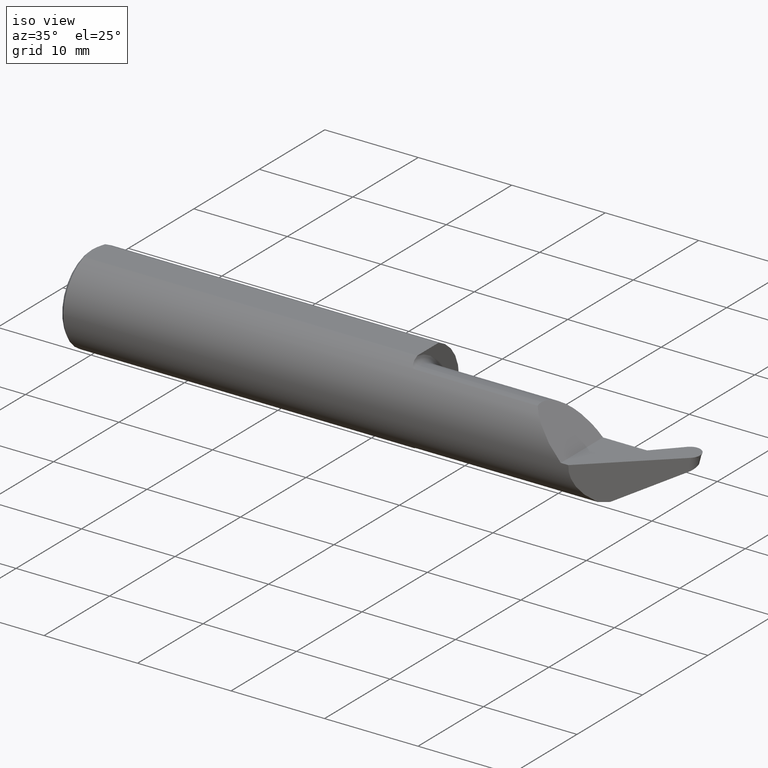
[diagram: clean part render]
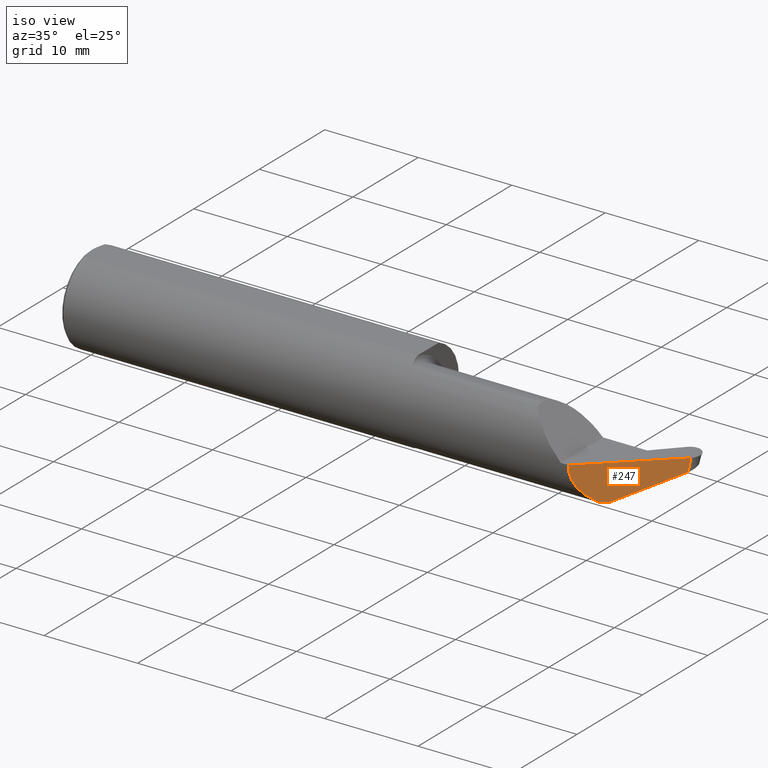
[diagram: same view with one face highlighted and labeled with its STEP entity id]
A machine part, iso view. The second image highlights one B-rep face of the part: STEP entity #247.
In plain terms, the highlighted planar face has unit normal (-0.6816, 0.7309, 0.0349).
Its self-contained STEP definition (entity closure, byte-faithful):
#16 = CARTESIAN_POINT ( 'NONE',  ( 2.451196188586195923, 0.1021196191854747415, -0.01806203069895944563 ) ) ;
#41 = DIRECTION ( 'NONE',  ( -0.7313537016191670181, -0.6819983600625021403, 0.000000000000000000 ) ) ;
#57 = ORIENTED_EDGE ( 'NONE', *, *, #413, .F. ) ;
#64 = VECTOR ( 'NONE', #762, 39.37007874015748854 ) ;
#70 = EDGE_CURVE ( 'NONE', #490, #519, #119, .T. ) ;
#73 = ORIENTED_EDGE ( 'NONE', *, *, #70, .T. ) ;
#96 =( BOUNDED_CURVE ( )  B_SPLINE_CURVE ( 3, ( #822, #214, #144, #522 ),
 .UNSPECIFIED., .F., .F. ) 
 B_SPLINE_CURVE_WITH_KNOTS ( ( 4, 4 ),
 ( 1.523084436873743508, 1.538444393020995671 ),
 .UNSPECIFIED. ) 
 CURVE ( )  GEOMETRIC_REPRESENTATION_ITEM ( )  RATIONAL_B_SPLINE_CURVE ( ( 1.000000000000000000, 0.9999803394088983000, 0.9999803394088983000, 1.000000000000000000 ) ) 
 REPRESENTATION_ITEM ( '' )  );
#119 = B_SPLINE_CURVE_WITH_KNOTS ( 'NONE', 3,
 ( #331, #579, #16, #523 ),
 .UNSPECIFIED., .F., .F.,
 ( 4, 4 ),
 ( 0.000000000000000000, 1.000000000000000000 ),
 .UNSPECIFIED. ) ;
#121 = CARTESIAN_POINT ( 'NONE',  ( 2.223516544669093875, -0.1038401262696877492, -0.1511553621332438202 ) ) ;
#127 = EDGE_CURVE ( 'NONE', #519, #439, #397, .T. ) ;
#144 = CARTESIAN_POINT ( 'NONE',  ( 2.244970942544508130, -0.08379353209400738911, -0.1519940231509273043 ) ) ;
#172 = FACE_OUTER_BOUND ( 'NONE', #302, .T. ) ;
#214 = CARTESIAN_POINT ( 'NONE',  ( 2.244136095074108272, -0.08457175457142981911, -0.1519999999999997464 ) ) ;
#238 = CARTESIAN_POINT ( 'NONE',  ( 2.245806022198207241, -0.08301537846867715342, -0.1519820698053077346 ) ) ;
#243 =( BOUNDED_CURVE ( )  B_SPLINE_CURVE ( 3, ( #432, #121, #442, #694 ),
 .UNSPECIFIED., .F., .T. ) 
 B_SPLINE_CURVE_WITH_KNOTS ( ( 4, 4 ),
 ( 1.340489448569094577, 1.523084436873743508 ),
 .UNSPECIFIED. ) 
 CURVE ( )  GEOMETRIC_REPRESENTATION_ITEM ( )  RATIONAL_B_SPLINE_CURVE ( ( 1.000000000000000000, 0.9972235185427065218, 0.9972235185427065218, 1.000000000000000000 ) ) 
 REPRESENTATION_ITEM ( '' )  );
#244 = LINE ( 'NONE', #501, #64 ) ;
#246 = VERTEX_POINT ( 'NONE', #238 ) ;
#247 = ADVANCED_FACE ( 'NONE', ( #172 ), #595, .F. ) ;
#255 = AXIS2_PLACEMENT_3D ( 'NONE', #422, #736, #472 ) ;
#266 = CARTESIAN_POINT ( 'NONE',  ( 2.213833035312449127, -0.1129504686584655859, -0.1494731217638575194 ) ) ;
#271 = CARTESIAN_POINT ( 'NONE',  ( 2.213833035312449127, -0.1129504686584655859, -0.1494731217638575194 ) ) ;
#302 = EDGE_LOOP ( 'NONE', ( #57, #73, #588, #723, #361, #658 ) ) ;
#325 =( BOUNDED_CURVE ( )  B_SPLINE_CURVE ( 3, ( #271, #529, #725, #775 ),
 .UNSPECIFIED., .F., .T. ) 
 B_SPLINE_CURVE_WITH_KNOTS ( ( 4, 4 ),
 ( 5.407212885630066523, 6.330897197100739504 ),
 .UNSPECIFIED. ) 
 CURVE ( )  GEOMETRIC_REPRESENTATION_ITEM ( )  RATIONAL_B_SPLINE_CURVE ( ( 1.000000000000000000, 0.9301554373620524174, 0.9301554373620524174, 1.000000000000000000 ) ) 
 REPRESENTATION_ITEM ( '' )  );
#331 = CARTESIAN_POINT ( 'NONE',  ( 2.446225771526027604, 0.09920948656705549928, -0.05418609209688698969 ) ) ;
#351 = VECTOR ( 'NONE', #41, 39.37007874015748143 ) ;
#361 = ORIENTED_EDGE ( 'NONE', *, *, #626, .T. ) ;
#377 = CARTESIAN_POINT ( 'NONE',  ( 2.141702867418015188, -0.1873500000000000443, -1.894185036436226334E-18 ) ) ;
#396 = CARTESIAN_POINT ( 'NONE',  ( 2.243301529027790231, -0.08534999999999996756, -0.1519999999999997464 ) ) ;
#397 = LINE ( 'NONE', #482, #351 ) ;
#413 = EDGE_CURVE ( 'NONE', #490, #246, #244, .T. ) ;
#422 = CARTESIAN_POINT ( 'NONE',  ( 2.546610177810151310, 0.2020557698480204001, -0.2476242554592702760 ) ) ;
#432 = CARTESIAN_POINT ( 'NONE',  ( 2.213833035312449127, -0.1129504686584655859, -0.1494731217638575194 ) ) ;
#439 = VERTEX_POINT ( 'NONE', #377 ) ;
#442 = CARTESIAN_POINT ( 'NONE',  ( 2.233366724749886068, -0.09461435486697032660, -0.1519999999999997187 ) ) ;
#454 = VERTEX_POINT ( 'NONE', #266 ) ;
#472 = DIRECTION ( 'NONE',  ( -0.7313537016191666851, -0.6819983600625023623, 0.000000000000000000 ) ) ;
#482 = CARTESIAN_POINT ( 'NONE',  ( 2.169027510930384040, -0.1618693577013822493, 0.000000000000000000 ) ) ;
#490 = VERTEX_POINT ( 'NONE', #538 ) ;
#501 = CARTESIAN_POINT ( 'NONE',  ( 2.208254368741700890, -0.1171579467830791699, -0.1703056166446962061 ) ) ;
#519 = VERTEX_POINT ( 'NONE', #674 ) ;
#522 = CARTESIAN_POINT ( 'NONE',  ( 2.245806022198207241, -0.08301537846867715342, -0.1519820698053077346 ) ) ;
#523 = CARTESIAN_POINT ( 'NONE',  ( 2.453681397116281637, 0.1035746854946826417, 0.000000000000000000 ) ) ;
#529 = CARTESIAN_POINT ( 'NONE',  ( 2.164487922858646662, -0.1606879575236967450, -0.1133999356533503394 ) ) ;
#538 = CARTESIAN_POINT ( 'NONE',  ( 2.446225771526027604, 0.09920948656705549928, -0.05418609209688698969 ) ) ;
#579 = CARTESIAN_POINT ( 'NONE',  ( 2.448710980056110209, 0.1006645528762664943, -0.03612406139791903004 ) ) ;
#588 = ORIENTED_EDGE ( 'NONE', *, *, #127, .T. ) ;
#595 = PLANE ( 'NONE',  #255 ) ;
#626 = EDGE_CURVE ( 'NONE', #454, #690, #243, .T. ) ;
#631 = EDGE_CURVE ( 'NONE', #690, #246, #96, .T. ) ;
#656 = EDGE_CURVE ( 'NONE', #454, #439, #325, .T. ) ;
#658 = ORIENTED_EDGE ( 'NONE', *, *, #631, .T. ) ;
#674 = CARTESIAN_POINT ( 'NONE',  ( 2.453681397116281637, 0.1035746854946826417, 0.000000000000000000 ) ) ;
#690 = VERTEX_POINT ( 'NONE', #396 ) ;
#694 = CARTESIAN_POINT ( 'NONE',  ( 2.243301529027790231, -0.08534999999999996756, -0.1519999999999997464 ) ) ;
#723 = ORIENTED_EDGE ( 'NONE', *, *, #656, .F. ) ;
#725 = CARTESIAN_POINT ( 'NONE',  ( 2.138639136373741589, -0.1873500000000000165, -0.05983429283714613439 ) ) ;
#736 = DIRECTION ( 'NONE',  ( -0.6815829050885316986, 0.7309081807046564627, 0.03489949670248779223 ) ) ;
#762 = DIRECTION ( 'NONE',  ( -0.6959269503777322230, -0.6327479953080055175, -0.3395815869149112487 ) ) ;
#775 = CARTESIAN_POINT ( 'NONE',  ( 2.141702867418015188, -0.1873500000000000443, -1.894185036436226334E-18 ) ) ;
#822 = CARTESIAN_POINT ( 'NONE',  ( 2.243301529027790231, -0.08534999999999996756, -0.1519999999999997464 ) ) ;